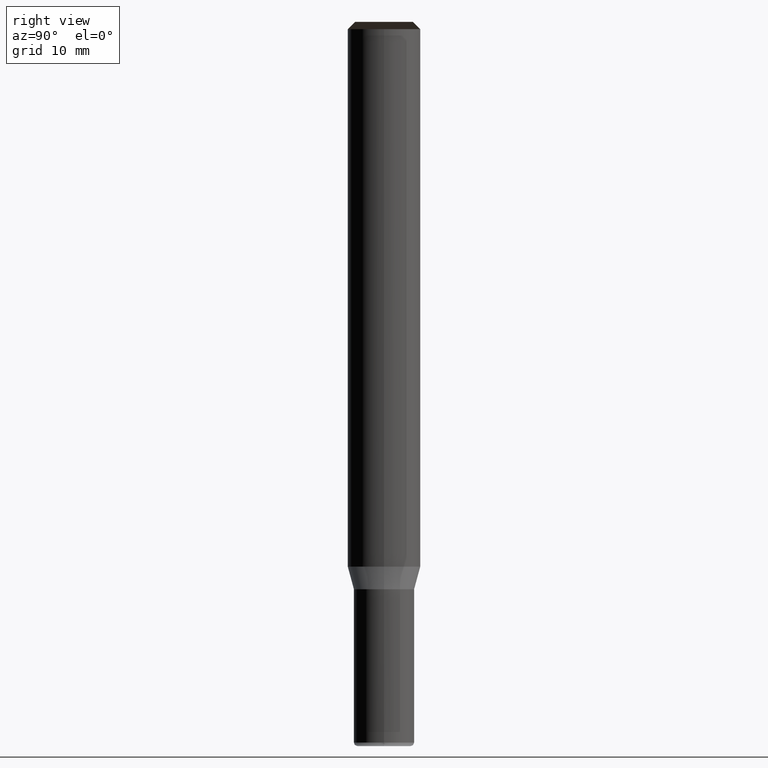
[diagram: clean part render]
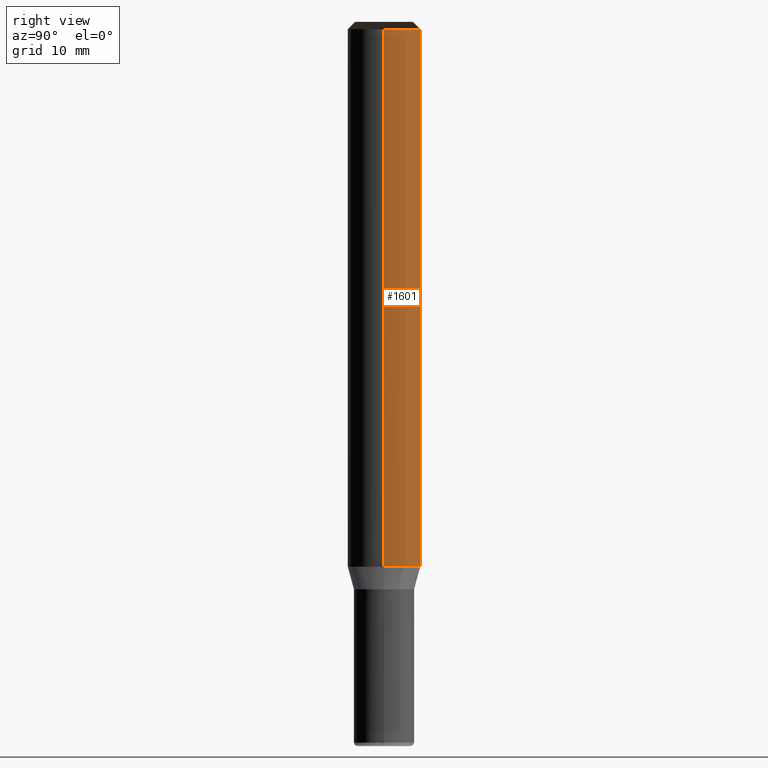
[diagram: same view with one face highlighted and labeled with its STEP entity id]
A machine part, right view. The second image highlights one B-rep face of the part: STEP entity #1601.
In plain terms, the highlighted face is a freeform B-spline surface patch.
Its self-contained STEP definition (entity closure, byte-faithful):
#1364=CARTESIAN_POINT('',(3.0,0.0,0.0));
#1365=CARTESIAN_POINT('',(3.0,3.0,0.0));
#1366=CARTESIAN_POINT('',(0.0,3.0,0.0));
#1367=CARTESIAN_POINT('',(-3.0,3.0,0.0));
#1368=CARTESIAN_POINT('',(-3.0,0.0,0.0));
#1369=CARTESIAN_POINT('',(3.0,0.0,44.533974596216));
#1370=CARTESIAN_POINT('',(3.0,3.0,44.533974596216));
#1371=CARTESIAN_POINT('',(0.0,3.0,44.533974596216));
#1372=CARTESIAN_POINT('',(-3.0,3.0,44.533974596216));
#1373=CARTESIAN_POINT('',(-3.0,0.0,44.533974596216));
#1582=(
BOUNDED_SURFACE()
B_SPLINE_SURFACE(1,2,(
(#1364,#1365,#1366,#1367,#1368),
(#1369,#1370,#1371,#1372,#1373)
), .UNSPECIFIED.,.F.,.F.,.F.)
B_SPLINE_SURFACE_WITH_KNOTS((2,2),(3,2,3),(
0.0,1.0),(
0.0,0.5,1.0), .UNSPECIFIED.)
GEOMETRIC_REPRESENTATION_ITEM()
RATIONAL_B_SPLINE_SURFACE(((1.0,0.707106781187,1.0,0.707106781187,1.0),
(1.0,0.707106781187,1.0,0.707106781187,1.0)
))
REPRESENTATION_ITEM('')
SURFACE()
);
#1583=(
BOUNDED_CURVE()
B_SPLINE_CURVE(2,(#1369,#1370,#1371,#1372,#1373),.UNSPECIFIED.,.F.,.F.)
B_SPLINE_CURVE_WITH_KNOTS((3,2,3),
(0.0,0.5,1.0),.UNSPECIFIED.)
CURVE()
GEOMETRIC_REPRESENTATION_ITEM()
RATIONAL_B_SPLINE_CURVE((1.0,0.707106781187,1.0,0.707106781187,1.0))
REPRESENTATION_ITEM('')
);
#1584=(
BOUNDED_CURVE()
B_SPLINE_CURVE(1,(#1373,#1368),.UNSPECIFIED.,.F.,.F.)
B_SPLINE_CURVE_WITH_KNOTS((2,2),
(0.0,1.0),.UNSPECIFIED.)
CURVE()
GEOMETRIC_REPRESENTATION_ITEM()
RATIONAL_B_SPLINE_CURVE((1.0,1.0))
REPRESENTATION_ITEM('')
);
#1585=(
BOUNDED_CURVE()
B_SPLINE_CURVE(2,(#1368,#1367,#1366,#1365,#1364),.UNSPECIFIED.,.F.,.F.)
B_SPLINE_CURVE_WITH_KNOTS((3,2,3),
(0.0,0.5,1.0),.UNSPECIFIED.)
CURVE()
GEOMETRIC_REPRESENTATION_ITEM()
RATIONAL_B_SPLINE_CURVE((1.0,0.707106781187,1.0,0.707106781187,1.0))
REPRESENTATION_ITEM('')
);
#1586=(
BOUNDED_CURVE()
B_SPLINE_CURVE(1,(#1364,#1369),.UNSPECIFIED.,.F.,.F.)
B_SPLINE_CURVE_WITH_KNOTS((2,2),
(0.0,1.0),.UNSPECIFIED.)
CURVE()
GEOMETRIC_REPRESENTATION_ITEM()
RATIONAL_B_SPLINE_CURVE((1.0,1.0))
REPRESENTATION_ITEM('')
);
#1587=VERTEX_POINT('',#1364);
#1588=VERTEX_POINT('',#1368);
#1589=VERTEX_POINT('',#1369);
#1590=VERTEX_POINT('',#1373);
#1591=EDGE_CURVE('',#1589,#1590,#1583,.T.);
#1592=EDGE_CURVE('',#1590,#1588,#1584,.T.);
#1593=EDGE_CURVE('',#1588,#1587,#1585,.T.);
#1594=EDGE_CURVE('',#1587,#1589,#1586,.T.);
#1595=ORIENTED_EDGE('',*,*,#1591,.T.);
#1596=ORIENTED_EDGE('',*,*,#1592,.T.);
#1597=ORIENTED_EDGE('',*,*,#1593,.T.);
#1598=ORIENTED_EDGE('',*,*,#1594,.T.);
#1599=EDGE_LOOP('',(#1595,#1596,#1597,#1598));
#1600=FACE_OUTER_BOUND('',#1599,.T.);
#1601=ADVANCED_FACE('',(#1600),#1582,.T.);